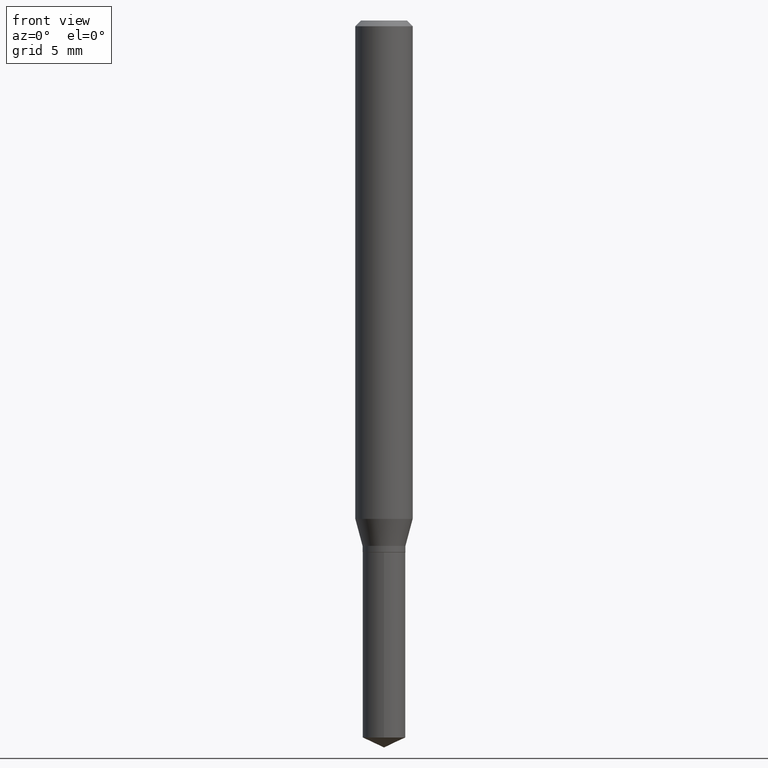
[diagram: clean part render]
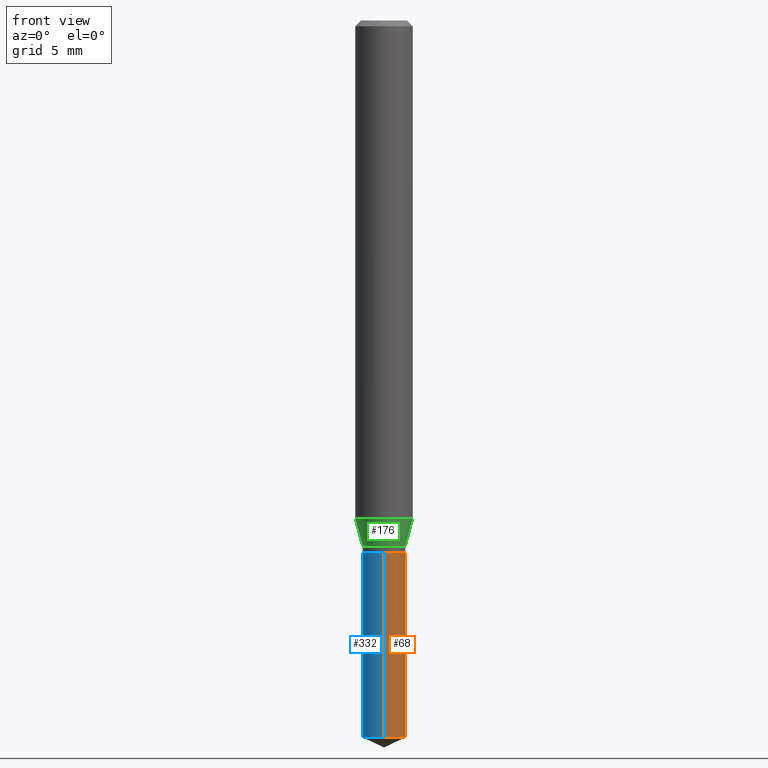
[diagram: same view with three faces highlighted in distinct colors, each labeled with its STEP entity id]
A machine part, front view with three faces highlighted in distinct colors.
Their STEP definitions:

[orange] entity #68 — the highlighted cylindrical surface (edge-blend (fillet) strip) has radius 1.1201 mm, axis along (-0, 0, 1).
#40 = CARTESIAN_POINT ( 'NONE',  ( -3.079486540859375509E-16, -0.04410000000000382364, -1.094499999999999806 ) ) ;
#41 = AXIS2_PLACEMENT_3D ( 'NONE', #174, #135, #289 ) ;
#45 = ORIENTED_EDGE ( 'NONE', *, *, #211, .F. ) ;
#63 = VECTOR ( 'NONE', #490, 39.37007874015748143 ) ;
#68 = ADVANCED_FACE ( 'NONE', ( #203 ), #352, .T. ) ;
#88 = DIRECTION ( 'NONE',  ( -2.445458899330790108E-29, 3.491495526022433205E-15, 1.000000000000000000 ) ) ;
#122 = ORIENTED_EDGE ( 'NONE', *, *, #239, .F. ) ;
#135 = DIRECTION ( 'NONE',  ( -2.445458899330790108E-29, 3.491495526022433205E-15, 1.000000000000000000 ) ) ;
#141 = EDGE_CURVE ( 'NONE', #488, #311, #145, .T. ) ;
#145 = CIRCLE ( 'NONE', #376, 0.04410000000000000031 ) ;
#174 = CARTESIAN_POINT ( 'NONE',  ( 2.676565608369631794E-29, -3.821426325363822773E-15, -1.094499999999999806 ) ) ;
#181 = CARTESIAN_POINT ( 'NONE',  ( 2.676565608369631794E-29, -3.821426325363822773E-15, -1.094499999999999806 ) ) ;
#196 = CARTESIAN_POINT ( 'NONE',  ( 3.133493464702402746E-16, 0.04409999999999617698, -1.094500000000000028 ) ) ;
#202 = CARTESIAN_POINT ( 'NONE',  ( 3.133493464702402253E-16, 0.04409999999999485859, -1.475535832275364889 ) ) ;
#203 = FACE_OUTER_BOUND ( 'NONE', #450, .T. ) ;
#206 = AXIS2_PLACEMENT_3D ( 'NONE', #181, #379, #375 ) ;
#209 = CARTESIAN_POINT ( 'NONE',  ( 3.608373075371336017E-29, -5.151811229007493237E-15, -1.475535832275364667 ) ) ;
#211 = EDGE_CURVE ( 'NONE', #331, #339, #353, .T. ) ;
#228 = ORIENTED_EDGE ( 'NONE', *, *, #360, .T. ) ;
#239 = EDGE_CURVE ( 'NONE', #488, #331, #335, .T. ) ;
#252 = DIRECTION ( 'NONE',  ( -6.982962677686265922E-15, -1.000000000000000000, 6.194666652299916821E-15 ) ) ;
#269 = CARTESIAN_POINT ( 'NONE',  ( 3.133493464702308575E-16, 0.04409999999999617698, -1.094500000000000028 ) ) ;
#289 = DIRECTION ( 'NONE',  ( -6.982962677686265922E-15, -1.000000000000000000, 3.097333326149958410E-15 ) ) ;
#298 = VECTOR ( 'NONE', #346, 39.37007874015748143 ) ;
#311 = VERTEX_POINT ( 'NONE', #202 ) ;
#331 = VERTEX_POINT ( 'NONE', #40 ) ;
#335 = LINE ( 'NONE', #487, #63 ) ;
#339 = VERTEX_POINT ( 'NONE', #196 ) ;
#346 = DIRECTION ( 'NONE',  ( -2.445458899330790108E-29, 3.491495526022433599E-15, 1.000000000000000000 ) ) ;
#349 = ORIENTED_EDGE ( 'NONE', *, *, #141, .T. ) ;
#352 = CYLINDRICAL_SURFACE ( 'NONE', #41, 0.04410000000000000031 ) ;
#353 = CIRCLE ( 'NONE', #206, 0.04410000000000000031 ) ;
#360 = EDGE_CURVE ( 'NONE', #311, #339, #468, .T. ) ;
#375 = DIRECTION ( 'NONE',  ( -6.982962677686265922E-15, -1.000000000000000000, 3.097333326149958410E-15 ) ) ;
#376 = AXIS2_PLACEMENT_3D ( 'NONE', #209, #88, #252 ) ;
#379 = DIRECTION ( 'NONE',  ( -2.445458899330790108E-29, 3.491495526022433205E-15, 1.000000000000000000 ) ) ;
#399 = CARTESIAN_POINT ( 'NONE',  ( -3.079486540859282818E-16, -0.04410000000000514897, -1.475535832275364445 ) ) ;
#450 = EDGE_LOOP ( 'NONE', ( #349, #228, #45, #122 ) ) ;
#468 = LINE ( 'NONE', #269, #298 ) ;
#487 = CARTESIAN_POINT ( 'NONE',  ( -3.079486540859375509E-16, -0.04410000000000382364, -1.094499999999999806 ) ) ;
#488 = VERTEX_POINT ( 'NONE', #399 ) ;
#490 = DIRECTION ( 'NONE',  ( -2.445458899330790108E-29, 3.491495526022433599E-15, 1.000000000000000000 ) ) ;

[blue] entity #332 — the highlighted cylindrical surface (edge-blend (fillet) strip) has radius 1.1201 mm, axis along (-0, 0, 1).
#6 = ORIENTED_EDGE ( 'NONE', *, *, #239, .T. ) ;
#28 = ORIENTED_EDGE ( 'NONE', *, *, #447, .F. ) ;
#38 = EDGE_CURVE ( 'NONE', #311, #488, #434, .T. ) ;
#40 = CARTESIAN_POINT ( 'NONE',  ( -3.079486540859375509E-16, -0.04410000000000382364, -1.094499999999999806 ) ) ;
#44 = DIRECTION ( 'NONE',  ( -2.445458899330790108E-29, 3.491495526022433205E-15, 1.000000000000000000 ) ) ;
#46 = CARTESIAN_POINT ( 'NONE',  ( 2.676565608369631794E-29, -3.821426325363822773E-15, -1.094499999999999806 ) ) ;
#63 = VECTOR ( 'NONE', #490, 39.37007874015748143 ) ;
#80 = AXIS2_PLACEMENT_3D ( 'NONE', #470, #356, #86 ) ;
#85 = DIRECTION ( 'NONE',  ( -6.982962677686265922E-15, -1.000000000000000000, 3.097333326149958410E-15 ) ) ;
#86 = DIRECTION ( 'NONE',  ( -6.982962677686265922E-15, -1.000000000000000000, 6.194666652299916821E-15 ) ) ;
#111 = ORIENTED_EDGE ( 'NONE', *, *, #38, .T. ) ;
#124 = FACE_OUTER_BOUND ( 'NONE', #275, .T. ) ;
#196 = CARTESIAN_POINT ( 'NONE',  ( 3.133493464702402746E-16, 0.04409999999999617698, -1.094500000000000028 ) ) ;
#202 = CARTESIAN_POINT ( 'NONE',  ( 3.133493464702402253E-16, 0.04409999999999485859, -1.475535832275364889 ) ) ;
#210 = DIRECTION ( 'NONE',  ( -6.982962677686265922E-15, -1.000000000000000000, 3.097333326149958410E-15 ) ) ;
#239 = EDGE_CURVE ( 'NONE', #488, #331, #335, .T. ) ;
#269 = CARTESIAN_POINT ( 'NONE',  ( 3.133493464702308575E-16, 0.04409999999999617698, -1.094500000000000028 ) ) ;
#273 = CARTESIAN_POINT ( 'NONE',  ( 2.676565608369631794E-29, -3.821426325363822773E-15, -1.094499999999999806 ) ) ;
#275 = EDGE_LOOP ( 'NONE', ( #306, #111, #6, #28 ) ) ;
#282 = CIRCLE ( 'NONE', #354, 0.04410000000000000031 ) ;
#298 = VECTOR ( 'NONE', #346, 39.37007874015748143 ) ;
#306 = ORIENTED_EDGE ( 'NONE', *, *, #360, .F. ) ;
#311 = VERTEX_POINT ( 'NONE', #202 ) ;
#331 = VERTEX_POINT ( 'NONE', #40 ) ;
#332 = ADVANCED_FACE ( 'NONE', ( #124 ), #390, .T. ) ;
#335 = LINE ( 'NONE', #487, #63 ) ;
#339 = VERTEX_POINT ( 'NONE', #196 ) ;
#346 = DIRECTION ( 'NONE',  ( -2.445458899330790108E-29, 3.491495526022433599E-15, 1.000000000000000000 ) ) ;
#354 = AXIS2_PLACEMENT_3D ( 'NONE', #273, #428, #85 ) ;
#356 = DIRECTION ( 'NONE',  ( -2.445458899330790108E-29, 3.491495526022433205E-15, 1.000000000000000000 ) ) ;
#360 = EDGE_CURVE ( 'NONE', #311, #339, #468, .T. ) ;
#390 = CYLINDRICAL_SURFACE ( 'NONE', #458, 0.04410000000000000031 ) ;
#399 = CARTESIAN_POINT ( 'NONE',  ( -3.079486540859282818E-16, -0.04410000000000514897, -1.475535832275364445 ) ) ;
#428 = DIRECTION ( 'NONE',  ( -2.445458899330790108E-29, 3.491495526022433205E-15, 1.000000000000000000 ) ) ;
#434 = CIRCLE ( 'NONE', #80, 0.04410000000000000031 ) ;
#447 = EDGE_CURVE ( 'NONE', #339, #331, #282, .T. ) ;
#458 = AXIS2_PLACEMENT_3D ( 'NONE', #46, #44, #210 ) ;
#468 = LINE ( 'NONE', #269, #298 ) ;
#470 = CARTESIAN_POINT ( 'NONE',  ( 3.608373075371336017E-29, -5.151811229007493237E-15, -1.475535832275364667 ) ) ;
#487 = CARTESIAN_POINT ( 'NONE',  ( -3.079486540859375509E-16, -0.04410000000000382364, -1.094499999999999806 ) ) ;
#488 = VERTEX_POINT ( 'NONE', #399 ) ;
#490 = DIRECTION ( 'NONE',  ( -2.445458899330790108E-29, 3.491495526022433599E-15, 1.000000000000000000 ) ) ;

[green] entity #176 — the highlighted conical surface has half-angle 15 deg.
#1 = ORIENTED_EDGE ( 'NONE', *, *, #243, .T. ) ;
#2 = CARTESIAN_POINT ( 'NONE',  ( 0.05905000000000013016, -3.992878450842360459E-15, -1.025505840426844895 ) ) ;
#10 = CARTESIAN_POINT ( 'NONE',  ( 0.04410000000000000031, -4.083287425777057775E-15, -1.081299999999999928 ) ) ;
#12 = CARTESIAN_POINT ( 'NONE',  ( -0.05905000000000013016, -3.160959019258645651E-15, -1.025505840426844895 ) ) ;
#27 = DIRECTION ( 'NONE',  ( 1.000000000000000000, -6.982962677686271444E-15, 0.000000000000000000 ) ) ;
#32 = VECTOR ( 'NONE', #381, 39.37007874015748143 ) ;
#58 = CARTESIAN_POINT ( 'NONE',  ( 2.644285420127988674E-29, -3.775338771691093501E-15, -1.081299999999999928 ) ) ;
#65 = ORIENTED_EDGE ( 'NONE', *, *, #233, .F. ) ;
#66 = LINE ( 'NONE', #67, #330 ) ;
#67 = CARTESIAN_POINT ( 'NONE',  ( -0.04410000000000000031, -3.461989425220889120E-15, -1.081299999999999928 ) ) ;
#75 = LINE ( 'NONE', #232, #32 ) ;
#76 = VERTEX_POINT ( 'NONE', #12 ) ;
#81 = AXIS2_PLACEMENT_3D ( 'NONE', #108, #153, #27 ) ;
#100 = VERTEX_POINT ( 'NONE', #440 ) ;
#108 = CARTESIAN_POINT ( 'NONE',  ( 2.644285420127988674E-29, -3.775338771691093501E-15, -1.081299999999999928 ) ) ;
#120 = AXIS2_PLACEMENT_3D ( 'NONE', #58, #367, #220 ) ;
#153 = DIRECTION ( 'NONE',  ( -2.445468806185136597E-29, 3.491481338843145583E-15, 1.000000000000000000 ) ) ;
#176 = ADVANCED_FACE ( 'NONE', ( #407 ), #195, .T. ) ;
#186 = DIRECTION ( 'NONE',  ( 1.000000000000000000, -6.982962677686265133E-15, 0.000000000000000000 ) ) ;
#195 = CONICAL_SURFACE ( 'NONE', #120, 0.04410000000000000031, 0.2617993877991496854 ) ;
#220 = DIRECTION ( 'NONE',  ( 1.000000000000000000, -6.982962677686271444E-15, 0.000000000000000000 ) ) ;
#221 = EDGE_CURVE ( 'NONE', #76, #231, #394, .T. ) ;
#231 = VERTEX_POINT ( 'NONE', #2 ) ;
#232 = CARTESIAN_POINT ( 'NONE',  ( 0.04410000000000000031, -4.083287425777057775E-15, -1.081299999999999928 ) ) ;
#233 = EDGE_CURVE ( 'NONE', #100, #76, #66, .T. ) ;
#236 = ORIENTED_EDGE ( 'NONE', *, *, #296, .T. ) ;
#243 = EDGE_CURVE ( 'NONE', #100, #347, #435, .T. ) ;
#264 = EDGE_LOOP ( 'NONE', ( #65, #1, #236, #382 ) ) ;
#295 = DIRECTION ( 'NONE',  ( -0.2588190451025210170, 5.211531920934547886E-15, 0.9659258262890682012 ) ) ;
#296 = EDGE_CURVE ( 'NONE', #347, #231, #75, .T. ) ;
#330 = VECTOR ( 'NONE', #295, 39.37007874015748143 ) ;
#341 = DIRECTION ( 'NONE',  ( -2.445468806185136597E-29, 3.491481338843145583E-15, 1.000000000000000000 ) ) ;
#347 = VERTEX_POINT ( 'NONE', #10 ) ;
#367 = DIRECTION ( 'NONE',  ( -2.445468806185136597E-29, 3.491481338843145583E-15, 1.000000000000000000 ) ) ;
#381 = DIRECTION ( 'NONE',  ( 0.2588190451025210170, 1.565188264969624531E-15, 0.9659258262890682012 ) ) ;
#382 = ORIENTED_EDGE ( 'NONE', *, *, #221, .F. ) ;
#394 = CIRCLE ( 'NONE', #457, 0.05905000000000013016 ) ;
#407 = FACE_OUTER_BOUND ( 'NONE', #264, .T. ) ;
#414 = CARTESIAN_POINT ( 'NONE',  ( 2.507842543324521541E-29, -3.580534504724985539E-15, -1.025505840426844895 ) ) ;
#435 = CIRCLE ( 'NONE', #81, 0.04410000000000000031 ) ;
#440 = CARTESIAN_POINT ( 'NONE',  ( -0.04410000000000000031, -3.484160331722543004E-15, -1.081299999999999928 ) ) ;
#457 = AXIS2_PLACEMENT_3D ( 'NONE', #414, #341, #186 ) ;